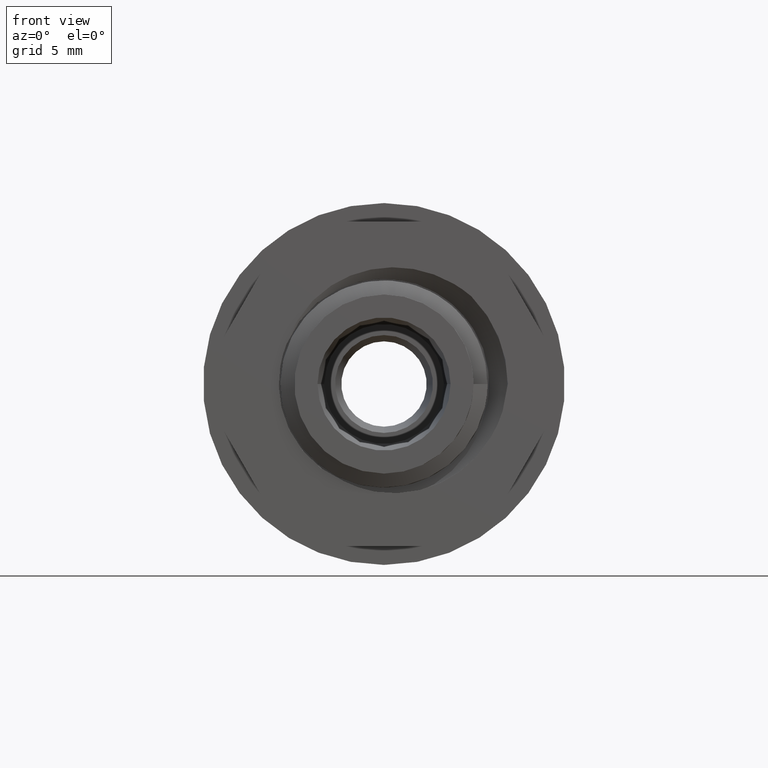
[diagram: clean part render]
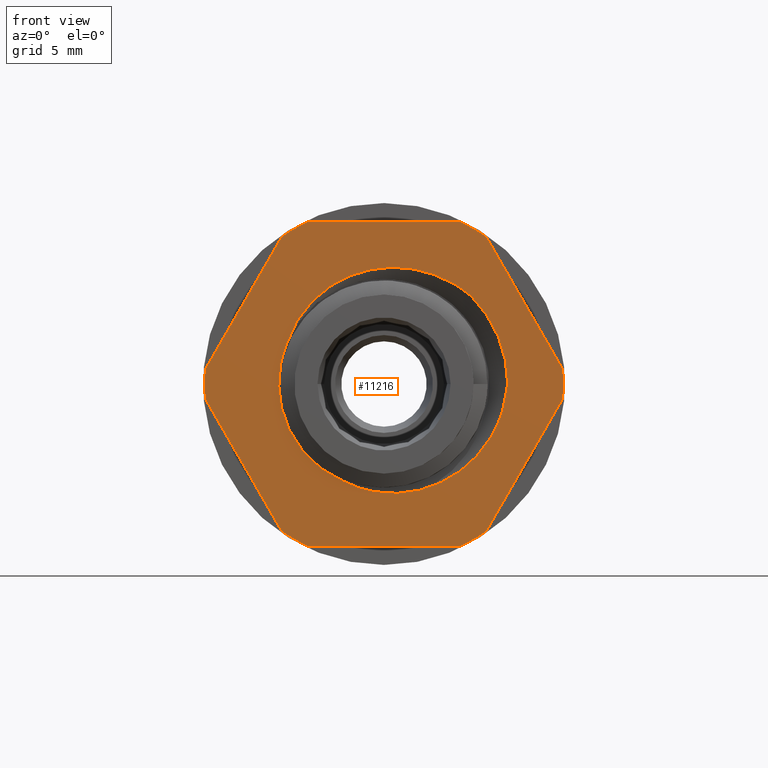
[diagram: same view with one face highlighted and labeled with its STEP entity id]
A machine part, front view. The second image highlights one B-rep face of the part: STEP entity #11216.
In plain terms, the highlighted planar face has unit normal (-0, 1, 0).
Its self-contained STEP definition (entity closure, byte-faithful):
#295 = AXIS2_PLACEMENT_3D ( 'NONE', #7703, #7731, #7725 ) ;
#566 = AXIS2_PLACEMENT_3D ( 'NONE', #9734, #9736, #9721 ) ;
#588 = AXIS2_PLACEMENT_3D ( 'NONE', #9801, #9790, #9794 ) ;
#592 = CIRCLE ( 'NONE', #617, 10.50000000000000000 ) ;
#596 = VECTOR ( 'NONE', #9718, 1000.000000000000000 ) ;
#598 = VECTOR ( 'NONE', #9765, 1000.000000000000000 ) ;
#599 = CIRCLE ( 'NONE', #566, 10.50000000000000000 ) ;
#608 = VECTOR ( 'NONE', #9814, 1000.000000000000200 ) ;
#617 = AXIS2_PLACEMENT_3D ( 'NONE', #9758, #9744, #9720 ) ;
#619 = CIRCLE ( 'NONE', #588, 10.50000000000000000 ) ;
#623 = VECTOR ( 'NONE', #9807, 1000.000000000000000 ) ;
#625 = CIRCLE ( 'NONE', #643, 10.50000000000000000 ) ;
#643 = AXIS2_PLACEMENT_3D ( 'NONE', #9846, #9818, #9837 ) ;
#766 = B_SPLINE_CURVE_WITH_KNOTS ( 'NONE', 3,
 ( #4570, #4616, #4579, #4587, #4589, #4590, #4595, #4573, #4598, #4609, #4592, #4594, #4602, #4605, #4623, #4606, #4577, #4608, #4617, #4572, #4580, #4610, #4618, #4619, #4621, #4624 ),
 .UNSPECIFIED., .F., .F.,
 ( 4, 2, 2, 2, 2, 2, 2, 2, 2, 2, 2, 2, 4 ),
 ( 5.717097322226007600E-017, 0.001644608938514715700, 0.002466913407772045600, 0.003289217877029375900, 0.004111522346286706200, 0.004933826815544035600, 0.006578435754058694500, 0.007400740223316021300, 0.008223044692573349900, 0.009045349161830678500, 0.009867653631088005300, 0.01151226256960266200, 0.01315687150811732000 ),
 .UNSPECIFIED. ) ;
#2200 = B_SPLINE_CURVE_WITH_KNOTS ( 'NONE', 3,
 ( #4021, #4049, #4025, #4050, #4093, #4118, #4109, #4106, #4070, #4084, #4105, #4078, #4116, #4077, #4111, #4073, #4117, #4079, #4074, #4101 ),
 .UNSPECIFIED., .F., .F.,
 ( 4, 2, 2, 2, 2, 2, 2, 2, 2, 4 ),
 ( 0.0000000000000000000, 0.001214794923089400700, 0.002429589846178801300, 0.003644384769268205600, 0.004859179692357610400, 0.005466577153902312100, 0.006073974615447015600, 0.007288769538536419900, 0.008503564461625826000, 0.009718359384715231200 ),
 .UNSPECIFIED. ) ;
#2222 = B_SPLINE_CURVE_WITH_KNOTS ( 'NONE', 3,
 ( #3849, #3897, #3868, #3843, #3889, #3869, #3860, #3881, #3848, #3844, #3870, #3855, #3890, #3840, #3882, #3871, #3850, #3886, #3879, #3861, #3862, #3891, #3884, #3863 ),
 .UNSPECIFIED., .F., .F.,
 ( 4, 2, 2, 2, 2, 2, 2, 2, 2, 2, 2, 4 ),
 ( 4.336808689942017700E-019, 0.001644837819450920400, 0.002467256729176379600, 0.003289675638901839100, 0.004934513458352754800, 0.005756932368078213100, 0.006579351277803673100, 0.008224189097254593100, 0.009046608006980053100, 0.009869026916705511300, 0.01151386473615643300, 0.01315870255560735100 ),
 .UNSPECIFIED. ) ;
#2232 = CARTESIAN_POINT ( 'NONE',  ( 3.469446951953614200E-015, -13.15617894201410600, 0.0000000000000000000 ) ) ;
#2236 = DIRECTION ( 'NONE',  ( 0.0000000000000000000, 1.000000000000000000, 0.0000000000000000000 ) ) ;
#2268 = DIRECTION ( 'NONE',  ( 0.0000000000000000000, 0.0000000000000000000, 1.000000000000000000 ) ) ;
#3390 = DIRECTION ( 'NONE',  ( 0.0000000000000000000, 1.000000000000000000, 0.0000000000000000000 ) ) ;
#3392 = CARTESIAN_POINT ( 'NONE',  ( 3.469446951953614200E-015, -13.15617894201410600, 0.0000000000000000000 ) ) ;
#3399 = DIRECTION ( 'NONE',  ( 0.0000000000000000000, 0.0000000000000000000, 1.000000000000000000 ) ) ;
#3400 = LINE ( 'NONE', #3406, #14016 ) ;
#3406 = CARTESIAN_POINT ( 'NONE',  ( 5.991173358452394700, -13.15617894201410600, 8.622983346207407300 ) ) ;
#3408 = DIRECTION ( 'NONE',  ( 0.4999999999999998900, 0.0000000000000000000, -0.8660254037844386000 ) ) ;
#3638 = LINE ( 'NONE', #3658, #14038 ) ;
#3644 = DIRECTION ( 'NONE',  ( -0.4999999999999998900, 0.0000000000000000000, -0.8660254037844386000 ) ) ;
#3658 = CARTESIAN_POINT ( 'NONE',  ( 10.46330931345196200, -13.15617894201410600, -0.8770166537925795400 ) ) ;
#3812 = DIRECTION ( 'NONE',  ( -0.0000000000000000000, -1.000000000000000000, -0.0000000000000000000 ) ) ;
#3813 = DIRECTION ( 'NONE',  ( -1.776356839400250500E-015, 0.0000000000000000000, 1.000000000000000000 ) ) ;
#3832 = CARTESIAN_POINT ( 'NONE',  ( 3.469446951953614200E-015, -13.15617894201410600, 0.0000000000000000000 ) ) ;
#3840 = CARTESIAN_POINT ( 'NONE',  ( -0.5214993719559504200, -13.15617894201410100, 6.776382655739933400 ) ) ;
#3843 = CARTESIAN_POINT ( 'NONE',  ( -4.856700426224216800, -13.15617894201409800, 4.076836601073273900 ) ) ;
#3844 = CARTESIAN_POINT ( 'NONE',  ( -2.356181168594200200, -13.15617894201411500, 6.189711999591772900 ) ) ;
#3848 = CARTESIAN_POINT ( 'NONE',  ( -3.082807073322087400, -13.15617894201412100, 5.804296779369209100 ) ) ;
#3849 = CARTESIAN_POINT ( 'NONE',  ( -5.700845865701877500, -13.15617894201410600, 2.353300029802369900 ) ) ;
#3850 = CARTESIAN_POINT ( 'NONE',  ( 1.129383602435738000, -13.15617894201411200, 6.821245358768272200 ) ) ;
#3855 = CARTESIAN_POINT ( 'NONE',  ( -1.591733737947288000, -13.15617894201410100, 6.497054511333058000 ) ) ;
#3860 = CARTESIAN_POINT ( 'NONE',  ( -4.146946390802806800, -13.15617894201410500, 4.922181692397834300 ) ) ;
#3861 = CARTESIAN_POINT ( 'NONE',  ( 2.741301849956814700, -13.15617894201406600, 6.502826274270647700 ) ) ;
#3862 = CARTESIAN_POINT ( 'NONE',  ( 3.265434852413467300, -13.15617894201409800, 6.305031475556331700 ) ) ;
#3863 = CARTESIAN_POINT ( 'NONE',  ( 5.116519280103315900, -13.15617894201410600, 5.136509559645642900 ) ) ;
#3868 = CARTESIAN_POINT ( 'NONE',  ( -5.302815525980517600, -13.15617894201410100, 3.380921136924173200 ) ) ;
#3869 = CARTESIAN_POINT ( 'NONE',  ( -4.336621661200936700, -13.15617894201411000, 4.723781647613418700 ) ) ;
#3870 = CARTESIAN_POINT ( 'NONE',  ( -2.106256820345962800, -13.15617894201410300, 6.302256655192441500 ) ) ;
#3871 = CARTESIAN_POINT ( 'NONE',  ( 0.8515494815086861500, -13.15617894201411200, 6.839063462082720900 ) ) ;
#3879 = CARTESIAN_POINT ( 'NONE',  ( 1.943736942416176600, -13.15617894201406700, 6.702390207587275700 ) ) ;
#3881 = CARTESIAN_POINT ( 'NONE',  ( -3.541126590485838200, -13.15617894201410800, 5.480044027438429700 ) ) ;
#3882 = CARTESIAN_POINT ( 'NONE',  ( 0.02272264849858040800, -13.15617894201411000, 6.841314976108976400 ) ) ;
#3884 = CARTESIAN_POINT ( 'NONE',  ( 4.694594360067013900, -13.15617894201410300, 5.497127136038273900 ) ) ;
#3886 = CARTESIAN_POINT ( 'NONE',  ( 1.674557539719883100, -13.15617894201411400, 6.752929622741956600 ) ) ;
#3889 = CARTESIAN_POINT ( 'NONE',  ( -4.691158488853952600, -13.15617894201410100, 4.301801101572190900 ) ) ;
#3890 = CARTESIAN_POINT ( 'NONE',  ( -1.325391939715620200, -13.15617894201409900, 6.579759613264839900 ) ) ;
#3891 = CARTESIAN_POINT ( 'NONE',  ( 4.239508377606815900, -13.15617894201410500, 5.802143318867746500 ) ) ;
#3897 = CARTESIAN_POINT ( 'NONE',  ( -5.535906674606991400, -13.15617894201410800, 2.884380420024819100 ) ) ;
#4021 = CARTESIAN_POINT ( 'NONE',  ( -2.370042276145215300, -13.15617894201411000, -5.693905884719424800 ) ) ;
#4025 = CARTESIAN_POINT ( 'NONE',  ( -3.104023371254574400, -13.15617894201411200, -5.344724998257947700 ) ) ;
#4049 = CARTESIAN_POINT ( 'NONE',  ( -2.745124550176149600, -13.15617894201410800, -5.537780921559831700 ) ) ;
#4050 = CARTESIAN_POINT ( 'NONE',  ( -3.775043894491671500, -13.15617894201411000, -4.893882915534369700 ) ) ;
#4070 = CARTESIAN_POINT ( 'NONE',  ( -5.544556142679844900, -13.15617894201411400, -2.731005627299245100 ) ) ;
#4073 = CARTESIAN_POINT ( 'NONE',  ( -6.167671807757360900, -13.15617894201409800, 0.4026311035636411200 ) ) ;
#4074 = CARTESIAN_POINT ( 'NONE',  ( -5.855867944486877100, -13.15617894201411200, 1.977760589126719400 ) ) ;
#4077 = CARTESIAN_POINT ( 'NONE',  ( -6.127208880852686300, -13.15617894201409600, -0.8095945887152624600 ) ) ;
#4078 = CARTESIAN_POINT ( 'NONE',  ( -5.961420255658963700, -13.15617894201411400, -1.593670810709161700 ) ) ;
#4079 = CARTESIAN_POINT ( 'NONE',  ( -5.972908656612964300, -13.15617894201410800, 1.588279274492588700 ) ) ;
#4084 = CARTESIAN_POINT ( 'NONE',  ( -5.775987343222012300, -13.15617894201411200, -2.171714141162426800 ) ) ;
#4093 = CARTESIAN_POINT ( 'NONE',  ( -4.084307510121473000, -13.15617894201410500, -4.638681852118454100 ) ) ;
#4101 = CARTESIAN_POINT ( 'NONE',  ( -5.700845865701877500, -13.15617894201410600, 2.353300029802369900 ) ) ;
#4105 = CARTESIAN_POINT ( 'NONE',  ( -5.844601627721795400, -13.15617894201411000, -1.979633787022014600 ) ) ;
#4106 = CARTESIAN_POINT ( 'NONE',  ( -5.355866466954630300, -13.15617894201407100, -3.084416512489834600 ) ) ;
#4109 = CARTESIAN_POINT ( 'NONE',  ( -4.910671464624409000, -13.15617894201407100, -3.752897094364911400 ) ) ;
#4111 = CARTESIAN_POINT ( 'NONE',  ( -6.167263127929862400, -13.15617894201409900, -0.4088433008361256900 ) ) ;
#4116 = CARTESIAN_POINT ( 'NONE',  ( -6.010054227236074600, -13.15617894201410300, -1.398938763373709100 ) ) ;
#4117 = CARTESIAN_POINT ( 'NONE',  ( -6.128223661343541000, -13.15617894201410600, 0.8019623623175491400 ) ) ;
#4118 = CARTESIAN_POINT ( 'NONE',  ( -4.651354710360197800, -13.15617894201410500, -4.069869349354814100 ) ) ;
#4570 = CARTESIAN_POINT ( 'NONE',  ( 7.250000000000003600, -13.15617894201410600, -5.992444249930198100E-014 ) ) ;
#4572 = CARTESIAN_POINT ( 'NONE',  ( 1.379350233983965800, -13.15617894201410300, -6.360934662987242300 ) ) ;
#4573 = CARTESIAN_POINT ( 'NONE',  ( 6.116761127697996500, -13.15617894201412100, -3.357184499757268600 ) ) ;
#4577 = CARTESIAN_POINT ( 'NONE',  ( 2.714502767328139200, -13.15617894201411200, -6.039409552721367400 ) ) ;
#4579 = CARTESIAN_POINT ( 'NONE',  ( 7.104659368407880000, -13.15617894201410300, -1.093449434966760500 ) ) ;
#4580 = CARTESIAN_POINT ( 'NONE',  ( 1.101331900637122300, -13.15617894201410100, -6.390934386537512800 ) ) ;
#4587 = CARTESIAN_POINT ( 'NONE',  ( 6.855473548581790600, -13.15617894201410600, -1.878921004740239600 ) ) ;
#4589 = CARTESIAN_POINT ( 'NONE',  ( 6.756410821824602000, -13.15617894201410300, -2.137888067895207500 ) ) ;
#4590 = CARTESIAN_POINT ( 'NONE',  ( 6.527794164129474600, -13.15617894201410300, -2.643448616206029600 ) ) ;
#4592 = CARTESIAN_POINT ( 'NONE',  ( 5.442567733834464700, -13.15617894201410600, -4.228366330773188700 ) ) ;
#4594 = CARTESIAN_POINT ( 'NONE',  ( 4.858710593644653700, -13.15617894201410600, -4.818964699929758000 ) ) ;
#4595 = CARTESIAN_POINT ( 'NONE',  ( 6.399679015429848400, -13.15617894201412100, -2.887186605975099200 ) ) ;
#4598 = CARTESIAN_POINT ( 'NONE',  ( 5.961955867198845700, -13.15617894201412800, -3.583442752425489300 ) ) ;
#4602 = CARTESIAN_POINT ( 'NONE',  ( 4.428547312457879100, -13.15617894201410300, -5.158137675186326400 ) ) ;
#4605 = CARTESIAN_POINT ( 'NONE',  ( 3.722975220923686800, -13.15617894201410100, -5.586472182758928500 ) ) ;
#4606 = CARTESIAN_POINT ( 'NONE',  ( 2.971597502871866000, -13.15617894201410800, -5.942676203731645400 ) ) ;
#4608 = CARTESIAN_POINT ( 'NONE',  ( 2.190505160921266000, -13.15617894201411000, -6.200864500956266000 ) ) ;
#4609 = CARTESIAN_POINT ( 'NONE',  ( 5.625469616358127900, -13.15617894201412600, -4.018357956743396500 ) ) ;
#4610 = CARTESIAN_POINT ( 'NONE',  ( 0.2762443383001989500, -13.15617894201410600, -6.425981080220135600 ) ) ;
#4616 = CARTESIAN_POINT ( 'NONE',  ( 7.209221946945081800, -13.15617894201411200, -0.5546000499185669300 ) ) ;
#4617 = CARTESIAN_POINT ( 'NONE',  ( 1.923680471407022100, -13.15617894201410500, -6.265841268150706100 ) ) ;
#4618 = CARTESIAN_POINT ( 'NONE',  ( -0.2701826700631370100, -13.15617894201410100, -6.378864306564223900 ) ) ;
#4619 = CARTESIAN_POINT ( 'NONE',  ( -1.355563805848826400, -13.15617894201410100, -6.139589524229776000 ) ) ;
#4621 = CARTESIAN_POINT ( 'NONE',  ( -1.876760835999660100, -13.15617894201411500, -5.952349722689793200 ) ) ;
#4623 = CARTESIAN_POINT ( 'NONE',  ( 3.475744779111882300, -13.15617894201411200, -5.716433833529841900 ) ) ;
#4624 = CARTESIAN_POINT ( 'NONE',  ( -2.370042276145215300, -13.15617894201411000, -5.693905884719424800 ) ) ;
#7703 = CARTESIAN_POINT ( 'NONE',  ( 10.96965511460289600, -13.15617894201410600, 6.071532165918824800E-015 ) ) ;
#7709 = FACE_OUTER_BOUND ( 'NONE', #12977, .T. ) ;
#7724 = FACE_BOUND ( 'NONE', #12959, .T. ) ;
#7725 = DIRECTION ( 'NONE',  ( 0.0000000000000000000, -0.0000000000000000000, 1.000000000000000000 ) ) ;
#7728 = PLANE ( 'NONE',  #295 ) ;
#7731 = DIRECTION ( 'NONE',  ( -0.0000000000000000000, 1.000000000000000000, 0.0000000000000000000 ) ) ;
#9718 = DIRECTION ( 'NONE',  ( -0.5000000000000006700, 0.0000000000000000000, 0.8660254037844382600 ) ) ;
#9720 = DIRECTION ( 'NONE',  ( 0.0000000000000000000, 0.0000000000000000000, 1.000000000000000000 ) ) ;
#9721 = DIRECTION ( 'NONE',  ( 0.0000000000000000000, 0.0000000000000000000, 1.000000000000000000 ) ) ;
#9734 = CARTESIAN_POINT ( 'NONE',  ( 3.469446951953614200E-015, -13.15617894201410600, 0.0000000000000000000 ) ) ;
#9736 = DIRECTION ( 'NONE',  ( 0.0000000000000000000, 1.000000000000000000, 0.0000000000000000000 ) ) ;
#9744 = DIRECTION ( 'NONE',  ( 0.0000000000000000000, 1.000000000000000000, 0.0000000000000000000 ) ) ;
#9748 = LINE ( 'NONE', #9754, #596 ) ;
#9754 = CARTESIAN_POINT ( 'NONE',  ( -5.991173358452363700, -13.15617894201410600, -8.622983346207425000 ) ) ;
#9758 = CARTESIAN_POINT ( 'NONE',  ( 3.469446951953614200E-015, -13.15617894201410600, 0.0000000000000000000 ) ) ;
#9765 = DIRECTION ( 'NONE',  ( 1.000000000000000000, 0.0000000000000000000, 0.0000000000000000000 ) ) ;
#9787 = LINE ( 'NONE', #9789, #598 ) ;
#9789 = CARTESIAN_POINT ( 'NONE',  ( 10.96965511460289600, -13.15617894201410600, 9.500000000000016000 ) ) ;
#9790 = DIRECTION ( 'NONE',  ( 0.0000000000000000000, 1.000000000000000000, 0.0000000000000000000 ) ) ;
#9794 = DIRECTION ( 'NONE',  ( 0.0000000000000000000, 0.0000000000000000000, 1.000000000000000000 ) ) ;
#9801 = CARTESIAN_POINT ( 'NONE',  ( 3.469446951953614200E-015, -13.15617894201410600, 0.0000000000000000000 ) ) ;
#9807 = DIRECTION ( 'NONE',  ( -1.000000000000000000, -0.0000000000000000000, -0.0000000000000000000 ) ) ;
#9814 = DIRECTION ( 'NONE',  ( 0.5000000000000003300, 0.0000000000000000000, 0.8660254037844383700 ) ) ;
#9818 = DIRECTION ( 'NONE',  ( 0.0000000000000000000, 1.000000000000000000, 0.0000000000000000000 ) ) ;
#9826 = LINE ( 'NONE', #9845, #623 ) ;
#9837 = DIRECTION ( 'NONE',  ( 0.0000000000000000000, 0.0000000000000000000, 1.000000000000000000 ) ) ;
#9842 = CARTESIAN_POINT ( 'NONE',  ( -10.46330931345195300, -13.15617894201410600, 0.8770166537926168400 ) ) ;
#9845 = CARTESIAN_POINT ( 'NONE',  ( 10.96965511460289600, -13.15617894201410600, -9.500000000000016000 ) ) ;
#9846 = CARTESIAN_POINT ( 'NONE',  ( 3.469446951953614200E-015, -13.15617894201410600, 0.0000000000000000000 ) ) ;
#9848 = LINE ( 'NONE', #9842, #608 ) ;
#9980 = CARTESIAN_POINT ( 'NONE',  ( -4.472135954999541400, -13.15617894201410600, -9.500000000000016000 ) ) ;
#9993 = CARTESIAN_POINT ( 'NONE',  ( -10.46330931345195500, -13.15617894201410600, -0.8770166537925825300 ) ) ;
#9996 = CARTESIAN_POINT ( 'NONE',  ( 4.472135954999550300, -13.15617894201410600, -9.500000000000016000 ) ) ;
#10000 = CARTESIAN_POINT ( 'NONE',  ( -10.46330931345195100, -13.15617894201410600, 0.8770166537926181700 ) ) ;
#10017 = CARTESIAN_POINT ( 'NONE',  ( -4.472135954999543200, -13.15617894201410600, 9.500000000000016000 ) ) ;
#10026 = CARTESIAN_POINT ( 'NONE',  ( 5.991173358452394700, -13.15617894201410600, 8.622983346207407300 ) ) ;
#10064 = CARTESIAN_POINT ( 'NONE',  ( -2.370042276145215300, -13.15617894201411000, -5.693905884719424800 ) ) ;
#10078 = CARTESIAN_POINT ( 'NONE',  ( 5.116519280103315900, -13.15617894201410600, 5.136509559645642900 ) ) ;
#10096 = CARTESIAN_POINT ( 'NONE',  ( 10.46330931345196000, -13.15617894201410600, 0.8770166537925949700 ) ) ;
#10104 = CARTESIAN_POINT ( 'NONE',  ( 5.991173358452377900, -13.15617894201410600, -8.622983346207417900 ) ) ;
#10125 = CARTESIAN_POINT ( 'NONE',  ( -5.991173358452363700, -13.15617894201410600, -8.622983346207425000 ) ) ;
#10150 = CARTESIAN_POINT ( 'NONE',  ( -5.991173358452396500, -13.15617894201410600, 8.622983346207400100 ) ) ;
#10156 = CARTESIAN_POINT ( 'NONE',  ( -5.700845865701877500, -13.15617894201410600, 2.353300029802369900 ) ) ;
#10157 = CARTESIAN_POINT ( 'NONE',  ( 4.472135954999550300, -13.15617894201410600, 9.500000000000016000 ) ) ;
#10161 = CARTESIAN_POINT ( 'NONE',  ( 10.46330931345196200, -13.15617894201410600, -0.8770166537925778700 ) ) ;
#10167 = CARTESIAN_POINT ( 'NONE',  ( 7.250000000000003600, -13.15617894201410600, -5.992444249930198100E-014 ) ) ;
#10793 = EDGE_CURVE ( 'NONE', #12610, #12655, #13992, .T. ) ;
#10802 = EDGE_CURVE ( 'NONE', #12642, #12564, #14015, .T. ) ;
#10806 = EDGE_CURVE ( 'NONE', #12564, #12610, #3400, .T. ) ;
#10846 = EDGE_CURVE ( 'NONE', #12655, #12608, #3638, .T. ) ;
#10868 = EDGE_CURVE ( 'NONE', #12665, #12618, #14073, .T. ) ;
#10874 = EDGE_CURVE ( 'NONE', #12640, #12618, #2222, .T. ) ;
#10899 = EDGE_CURVE ( 'NONE', #12624, #12640, #2200, .T. ) ;
#10974 = EDGE_CURVE ( 'NONE', #12665, #12624, #766, .T. ) ;
#11216 = ADVANCED_FACE ( 'NONE', ( #7724, #7709 ), #7728, .F. ) ;
#11502 = EDGE_CURVE ( 'NONE', #12654, #12556, #592, .T. ) ;
#11505 = EDGE_CURVE ( 'NONE', #12608, #12557, #599, .T. ) ;
#11512 = EDGE_CURVE ( 'NONE', #12666, #12555, #9748, .T. ) ;
#11516 = EDGE_CURVE ( 'NONE', #12556, #12642, #9787, .T. ) ;
#11520 = EDGE_CURVE ( 'NONE', #12552, #12666, #619, .T. ) ;
#11531 = EDGE_CURVE ( 'NONE', #12561, #12654, #9848, .T. ) ;
#11536 = EDGE_CURVE ( 'NONE', #12555, #12561, #625, .T. ) ;
#11539 = EDGE_CURVE ( 'NONE', #12557, #12552, #9826, .T. ) ;
#12061 = ORIENTED_EDGE ( 'NONE', *, *, #10874, .T. ) ;
#12062 = ORIENTED_EDGE ( 'NONE', *, *, #10868, .F. ) ;
#12064 = ORIENTED_EDGE ( 'NONE', *, *, #11516, .F. ) ;
#12071 = ORIENTED_EDGE ( 'NONE', *, *, #10974, .T. ) ;
#12080 = ORIENTED_EDGE ( 'NONE', *, *, #10793, .F. ) ;
#12104 = ORIENTED_EDGE ( 'NONE', *, *, #10806, .F. ) ;
#12106 = ORIENTED_EDGE ( 'NONE', *, *, #10802, .F. ) ;
#12109 = ORIENTED_EDGE ( 'NONE', *, *, #11502, .F. ) ;
#12125 = ORIENTED_EDGE ( 'NONE', *, *, #11539, .F. ) ;
#12138 = ORIENTED_EDGE ( 'NONE', *, *, #11505, .F. ) ;
#12141 = ORIENTED_EDGE ( 'NONE', *, *, #11512, .F. ) ;
#12150 = ORIENTED_EDGE ( 'NONE', *, *, #10899, .T. ) ;
#12156 = ORIENTED_EDGE ( 'NONE', *, *, #11520, .F. ) ;
#12178 = ORIENTED_EDGE ( 'NONE', *, *, #11531, .F. ) ;
#12181 = ORIENTED_EDGE ( 'NONE', *, *, #10846, .F. ) ;
#12185 = ORIENTED_EDGE ( 'NONE', *, *, #11536, .F. ) ;
#12552 = VERTEX_POINT ( 'NONE', #9980 ) ;
#12555 = VERTEX_POINT ( 'NONE', #9993 ) ;
#12556 = VERTEX_POINT ( 'NONE', #10017 ) ;
#12557 = VERTEX_POINT ( 'NONE', #9996 ) ;
#12561 = VERTEX_POINT ( 'NONE', #10000 ) ;
#12564 = VERTEX_POINT ( 'NONE', #10026 ) ;
#12608 = VERTEX_POINT ( 'NONE', #10104 ) ;
#12610 = VERTEX_POINT ( 'NONE', #10096 ) ;
#12618 = VERTEX_POINT ( 'NONE', #10078 ) ;
#12624 = VERTEX_POINT ( 'NONE', #10064 ) ;
#12640 = VERTEX_POINT ( 'NONE', #10156 ) ;
#12642 = VERTEX_POINT ( 'NONE', #10157 ) ;
#12654 = VERTEX_POINT ( 'NONE', #10150 ) ;
#12655 = VERTEX_POINT ( 'NONE', #10161 ) ;
#12665 = VERTEX_POINT ( 'NONE', #10167 ) ;
#12666 = VERTEX_POINT ( 'NONE', #10125 ) ;
#12959 = EDGE_LOOP ( 'NONE', ( #12150, #12061, #12062, #12071 ) ) ;
#12977 = EDGE_LOOP ( 'NONE', ( #12080, #12104, #12106, #12064, #12109, #12178, #12185, #12141, #12156, #12125, #12138, #12181 ) ) ;
#13992 = CIRCLE ( 'NONE', #13997, 10.50000000000000000 ) ;
#13994 = AXIS2_PLACEMENT_3D ( 'NONE', #3392, #3390, #3399 ) ;
#13997 = AXIS2_PLACEMENT_3D ( 'NONE', #2232, #2236, #2268 ) ;
#14015 = CIRCLE ( 'NONE', #13994, 10.50000000000000000 ) ;
#14016 = VECTOR ( 'NONE', #3408, 1000.000000000000200 ) ;
#14038 = VECTOR ( 'NONE', #3644, 1000.000000000000200 ) ;
#14047 = AXIS2_PLACEMENT_3D ( 'NONE', #3832, #3812, #3813 ) ;
#14073 = CIRCLE ( 'NONE', #14047, 7.250000000000000000 ) ;